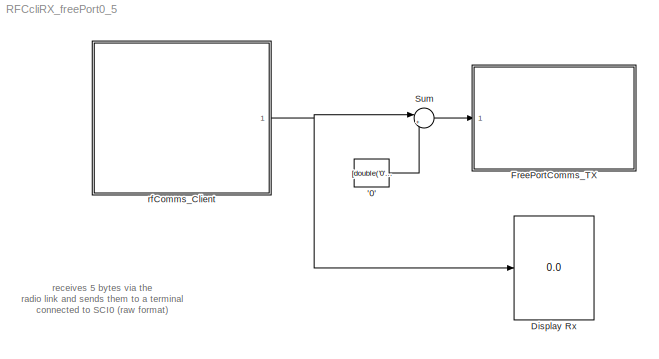
MODEL RFCcliRX_freePort0_5
KIND model
BLOCK [Constant] '0'
  SID = 1
  Value = [double('0') double('0') double('0') double('0') double('0')]
BLOCK [Display] Display Rx
  Decimation = 1
  Ports = [1]
  SID = 2
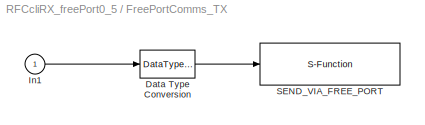
BLOCK [SubSystem] FreePortComms_TX
  Ports = [1]
  RequestExecContextInheritance = off
  SID = 10
  ShowPortLabels = none
  Tag = mcTarget_freePortCommsTX
BLOCK [DataTypeConversion] FreePortComms_TX/Data Type Conversion
  OutDataTypeStr = uint8
  SID = 10:12
BLOCK [Inport] FreePortComms_TX/In1
  IconDisplay = Port number
  SID = 10:11
BLOCK [S-Function] FreePortComms_TX/SEND_VIA_FREE_PORT
  EnableBusSupport = off
  FunctionName = freePortComms_txd
  Parameters = sampletime, channel, buf_size, data_type, port, baudrate, format
  Ports = [1]
  SFcnIsStateOwnerBlock = off
  SFunctionDeploymentMode = off
  SID = 10:13
  Tag = mcTarget_freePortCommsTX
BLOCK [Sum] Sum
  IconShape = round
  InputSameDT = off
  Inputs = |++
  OutDataTypeStr = Inherit: Inherit via internal rule
  Ports = [2, 1]
  SID = 4
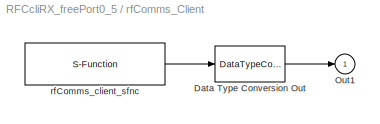
BLOCK [SubSystem] rfComms_Client
  Ports = [0, 1]
  RequestExecContextInheritance = off
  SID = 6
  ShowPortLabels = none
  Tag = mcTarget_rfCommsCli
BLOCK [DataTypeConversion] rfComms_Client/Data Type Conversion Out
  OutDataTypeStr = double
  SID = 6:7
BLOCK [Outport] rfComms_Client/Out1
  IconDisplay = Port number
  SID = 6:9
BLOCK [S-Function] rfComms_Client/rfComms_client_sfnc
  EnableBusSupport = off
  FunctionName = rfComms_client
  Parameters = sampletime, RXTXmode, channel, buf_size, data_type
  Ports = [0, 1]
  SFcnIsStateOwnerBlock = off
  SFunctionDeploymentMode = off
  SID = 6:8
  Tag = mcTarget_rfCommsCli
ANNOTATION (root): receives 5 bytes via the \nradio link and sends them to a terminal\nconnected to SCI0 (raw format)
LINE '0':1 -> Sum:2
LINE FreePortComms_TX/Data Type Conversion:1 -> FreePortComms_TX/SEND_VIA_FREE_PORT:1
LINE FreePortComms_TX/In1:1 -> FreePortComms_TX/Data Type Conversion:1
LINE Sum:1 -> FreePortComms_TX:1
LINE rfComms_Client/Data Type Conversion Out:1 -> rfComms_Client/Out1:1
LINE rfComms_Client/rfComms_client_sfnc:1 -> rfComms_Client/Data Type Conversion Out:1
NET rfComms_Client:1 -> Display Rx:1, Sum:1
note: NET lines group one-source signal fan-out (src -> all destinations, sorted); 1:1 wires keep LINE
